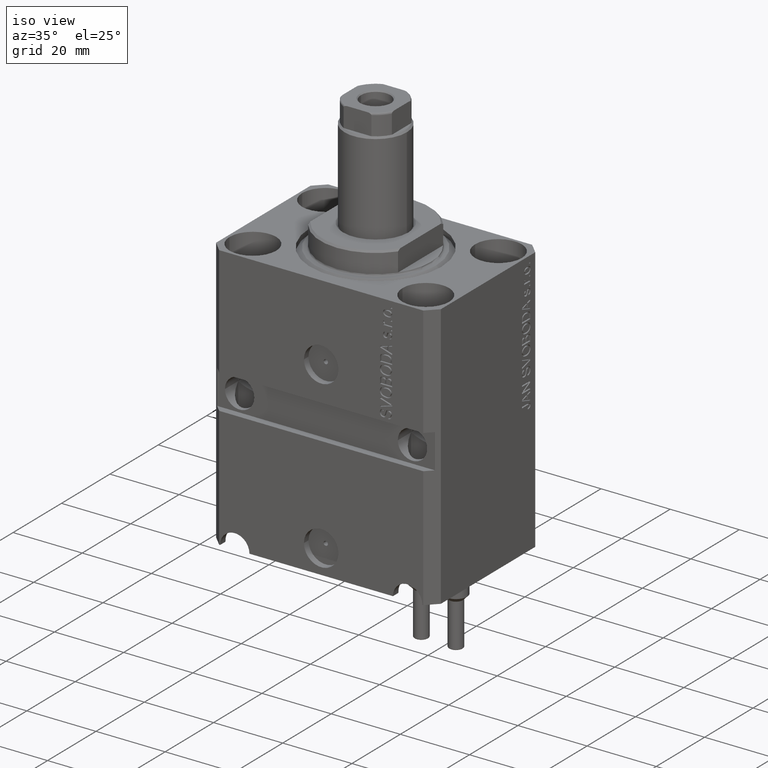
[diagram: clean part render]
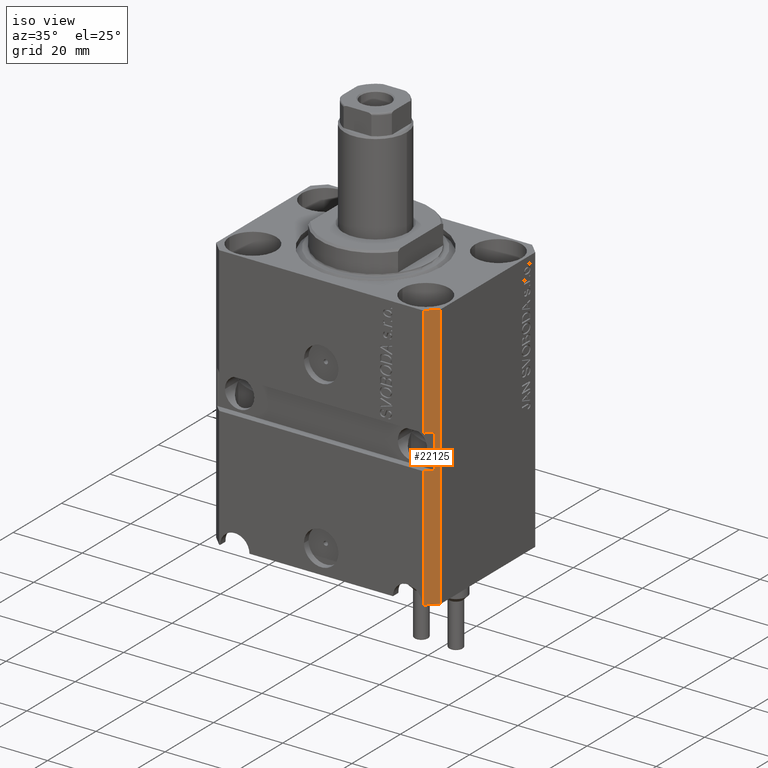
[diagram: same view with one face highlighted and labeled with its STEP entity id]
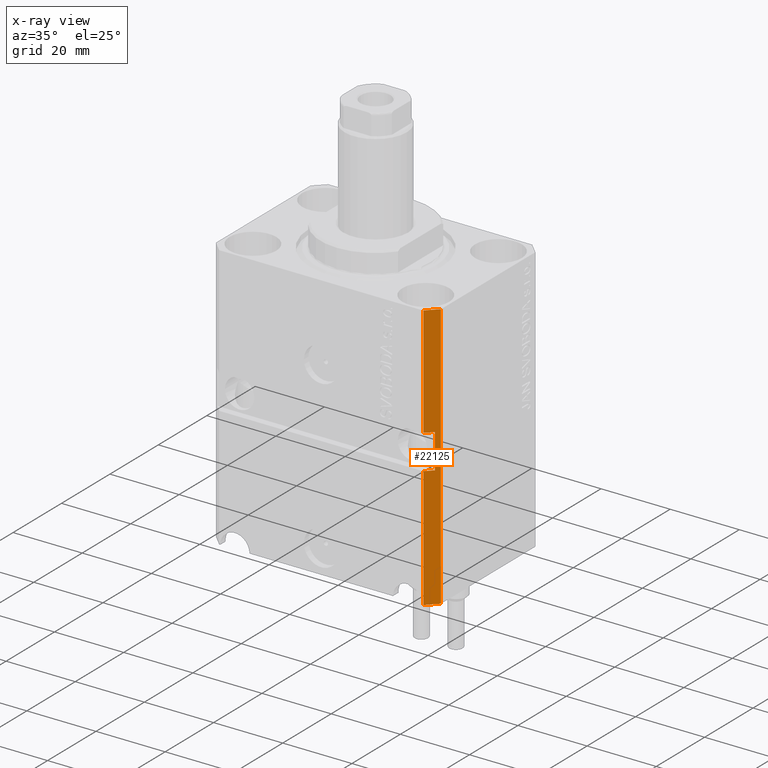
[diagram: x-ray of the same camera — body ghosted, the highlighted face saturated]
A machine part, iso view. The second image highlights one B-rep face of the part: STEP entity #22125.
The next image is the same camera in x-ray: the body ghosted, the highlighted face saturated — about 0% of this face is hidden behind the body in this view.
In plain terms, the highlighted planar face has unit normal (0.7071, -0.7071, 0).
Its self-contained STEP definition (entity closure, byte-faithful):
#49 = EDGE_CURVE ( 'NONE', #37355, #32564, #17503, .T. ) ;
#147 = LINE ( 'NONE', #4255, #36919 ) ;
#1858 = EDGE_CURVE ( 'NONE', #28780, #4301, #9152, .T. ) ;
#2420 = CARTESIAN_POINT ( 'NONE',  ( 29.49999999999650058, -22.49999999999949551, -41.99999999999998579 ) ) ;
#2889 = VECTOR ( 'NONE', #10084, 1000.000000000000000 ) ;
#3136 = LINE ( 'NONE', #6803, #16022 ) ;
#3820 = EDGE_CURVE ( 'NONE', #17005, #33635, #19033, .T. ) ;
#4255 = CARTESIAN_POINT ( 'NONE',  ( 29.49999999999650413, -22.49999999999949196, -77.00000000000000000 ) ) ;
#4301 = VERTEX_POINT ( 'NONE', #15771 ) ;
#5700 = CARTESIAN_POINT ( 'NONE',  ( 31.49999999999651124, -20.49999999999949551, -77.00000000000000000 ) ) ;
#6803 = CARTESIAN_POINT ( 'NONE',  ( 29.49999999999650413, -22.49999999999949196, 0.000000000000000000 ) ) ;
#7500 = VERTEX_POINT ( 'NONE', #22779 ) ;
#7866 = FACE_OUTER_BOUND ( 'NONE', #29402, .T. ) ;
#8384 = DIRECTION ( 'NONE',  ( 0.000000000000000000, 0.000000000000000000, 1.000000000000000000 ) ) ;
#9152 = LINE ( 'NONE', #5700, #13978 ) ;
#9588 = AXIS2_PLACEMENT_3D ( 'NONE', #42260, #21861, #36516 ) ;
#9745 = VECTOR ( 'NONE', #33595, 1000.000000000000000 ) ;
#10084 = DIRECTION ( 'NONE',  ( -0.7071067811865483499, -0.7071067811865466846, 7.548521435980509068E-17 ) ) ;
#10488 = EDGE_CURVE ( 'NONE', #25611, #7500, #147, .T. ) ;
#11584 = ORIENTED_EDGE ( 'NONE', *, *, #36557, .F. ) ;
#12948 = ORIENTED_EDGE ( 'NONE', *, *, #38292, .F. ) ;
#13978 = VECTOR ( 'NONE', #19696, 1000.000000000000000 ) ;
#15188 = EDGE_CURVE ( 'NONE', #32564, #4301, #40245, .T. ) ;
#15588 = ORIENTED_EDGE ( 'NONE', *, *, #10488, .F. ) ;
#15771 = CARTESIAN_POINT ( 'NONE',  ( 31.49999999999650413, -20.49999999999949196, -41.99999999999998579 ) ) ;
#15825 = CARTESIAN_POINT ( 'NONE',  ( 32.49999999999651124, -19.49999999999949196, -77.00000000000000000 ) ) ;
#15906 = VECTOR ( 'NONE', #43771, 1000.000000000000000 ) ;
#16022 = VECTOR ( 'NONE', #17341, 1000.000000000000000 ) ;
#16094 = CARTESIAN_POINT ( 'NONE',  ( 31.49999999999651124, -20.49999999999949196, -32.00000000000000711 ) ) ;
#16744 = VECTOR ( 'NONE', #18607, 1000.000000000000000 ) ;
#17005 = VERTEX_POINT ( 'NONE', #25677 ) ;
#17280 = DIRECTION ( 'NONE',  ( 0.000000000000000000, 0.000000000000000000, 1.000000000000000000 ) ) ;
#17341 = DIRECTION ( 'NONE',  ( 0.7071067811865483499, 0.7071067811865466846, 0.000000000000000000 ) ) ;
#17503 = LINE ( 'NONE', #38138, #19029 ) ;
#18150 = LINE ( 'NONE', #39006, #16744 ) ;
#18607 = DIRECTION ( 'NONE',  ( 0.7071067811865483499, 0.7071067811865466846, 0.000000000000000000 ) ) ;
#19029 = VECTOR ( 'NONE', #17280, 1000.000000000000000 ) ;
#19033 = LINE ( 'NONE', #15825, #15906 ) ;
#19696 = DIRECTION ( 'NONE',  ( 0.000000000000000000, 0.000000000000000000, -1.000000000000000000 ) ) ;
#19877 = ORIENTED_EDGE ( 'NONE', *, *, #49, .F. ) ;
#21861 = DIRECTION ( 'NONE',  ( 0.7071067811865466846, -0.7071067811865483499, 0.000000000000000000 ) ) ;
#21986 = CARTESIAN_POINT ( 'NONE',  ( 29.49999999999650413, -22.49999999999949196, -77.00000000000000000 ) ) ;
#22125 = ADVANCED_FACE ( 'NONE', ( #7866 ), #28284, .T. ) ;
#22779 = CARTESIAN_POINT ( 'NONE',  ( 29.49999999999650413, -22.49999999999949196, 0.000000000000000000 ) ) ;
#25611 = VERTEX_POINT ( 'NONE', #38221 ) ;
#25677 = CARTESIAN_POINT ( 'NONE',  ( 32.49999999999651124, -19.49999999999949196, -77.00000000000000000 ) ) ;
#26253 = CARTESIAN_POINT ( 'NONE',  ( 29.49999999999650058, -22.49999999999949196, -41.99999999999998579 ) ) ;
#27288 = LINE ( 'NONE', #41266, #2889 ) ;
#28284 = PLANE ( 'NONE',  #9588 ) ;
#28780 = VERTEX_POINT ( 'NONE', #16094 ) ;
#29053 = ORIENTED_EDGE ( 'NONE', *, *, #3820, .T. ) ;
#29402 = EDGE_LOOP ( 'NONE', ( #42122, #19877, #41156, #29053, #11584, #15588, #12948, #37008 ) ) ;
#32564 = VERTEX_POINT ( 'NONE', #26253 ) ;
#33595 = DIRECTION ( 'NONE',  ( 0.7071067811865483499, 0.7071067811865466846, 7.548521435980509068E-17 ) ) ;
#33635 = VERTEX_POINT ( 'NONE', #45025 ) ;
#35805 = EDGE_CURVE ( 'NONE', #37355, #17005, #18150, .T. ) ;
#36516 = DIRECTION ( 'NONE',  ( 0.7071067811865483499, 0.7071067811865466846, 0.000000000000000000 ) ) ;
#36557 = EDGE_CURVE ( 'NONE', #7500, #33635, #3136, .T. ) ;
#36919 = VECTOR ( 'NONE', #8384, 1000.000000000000000 ) ;
#37008 = ORIENTED_EDGE ( 'NONE', *, *, #1858, .T. ) ;
#37355 = VERTEX_POINT ( 'NONE', #21986 ) ;
#38138 = CARTESIAN_POINT ( 'NONE',  ( 29.49999999999650413, -22.49999999999949196, -77.00000000000000000 ) ) ;
#38221 = CARTESIAN_POINT ( 'NONE',  ( 29.49999999999650413, -22.49999999999949196, -32.00000000000000711 ) ) ;
#38292 = EDGE_CURVE ( 'NONE', #28780, #25611, #27288, .T. ) ;
#39006 = CARTESIAN_POINT ( 'NONE',  ( 29.49999999999650413, -22.49999999999949196, -77.00000000000000000 ) ) ;
#40245 = LINE ( 'NONE', #2420, #9745 ) ;
#41156 = ORIENTED_EDGE ( 'NONE', *, *, #35805, .T. ) ;
#41266 = CARTESIAN_POINT ( 'NONE',  ( 29.49999999999650768, -22.49999999999948841, -32.00000000000000711 ) ) ;
#42122 = ORIENTED_EDGE ( 'NONE', *, *, #15188, .F. ) ;
#42260 = CARTESIAN_POINT ( 'NONE',  ( 29.49999999999650413, -22.49999999999949196, -77.00000000000000000 ) ) ;
#43771 = DIRECTION ( 'NONE',  ( 0.000000000000000000, 0.000000000000000000, 1.000000000000000000 ) ) ;
#45025 = CARTESIAN_POINT ( 'NONE',  ( 32.49999999999651124, -19.49999999999949196, 0.000000000000000000 ) ) ;